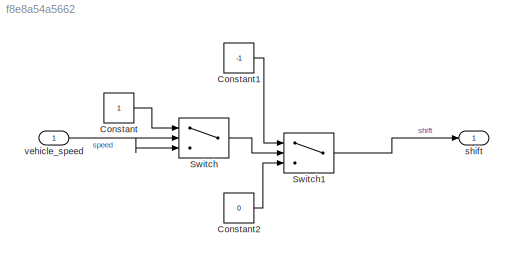
MODEL slx_f8e8a54a5662
KIND model
CONFIG AbsTol = auto
CONFIG EnableMultiTasking = on
CONFIG FixedStep = 0.05
CONFIG MaxStep = auto
CONFIG MinStep = auto
CONFIG RelTol = 1e-3
CONFIG SampleTimeConstraint = Unconstrained
CONFIG Solver = FixedStepAuto
CONFIG SolverName = FixedStepAuto
CONFIG StartTime = 0.0
CONFIG StopTime = 30
BLOCK [Constant] Constant
BLOCK [Constant] Constant1
  Value = -1
BLOCK [Constant] Constant2
  Value = 0
BLOCK [Switch] Switch
  Criteria = u2 > Threshold
  InputSameDT = off
  SaturateOnIntegerOverflow = off
  Threshold = up_threshold
BLOCK [Switch] Switch1
  Criteria = u2 > Threshold
  InputSameDT = off
  SaturateOnIntegerOverflow = off
  Threshold = down_threshold
BLOCK [Outport] shift
  IconDisplay = Port number
BLOCK [Inport] vehicle_speed
  IconDisplay = Port number
  OutDataTypeStr = double
LINE Constant1:1 -> Switch1:1
LINE Constant2:1 -> Switch1:3
LINE Constant:1 -> Switch:1
LINE Switch1:1 -> shift:1
LINE Switch:1 -> Switch1:2
NET vehicle_speed:1 -> Switch:2, Switch:3
note: NET lines group one-source signal fan-out (src -> all destinations, sorted); 1:1 wires keep LINE
